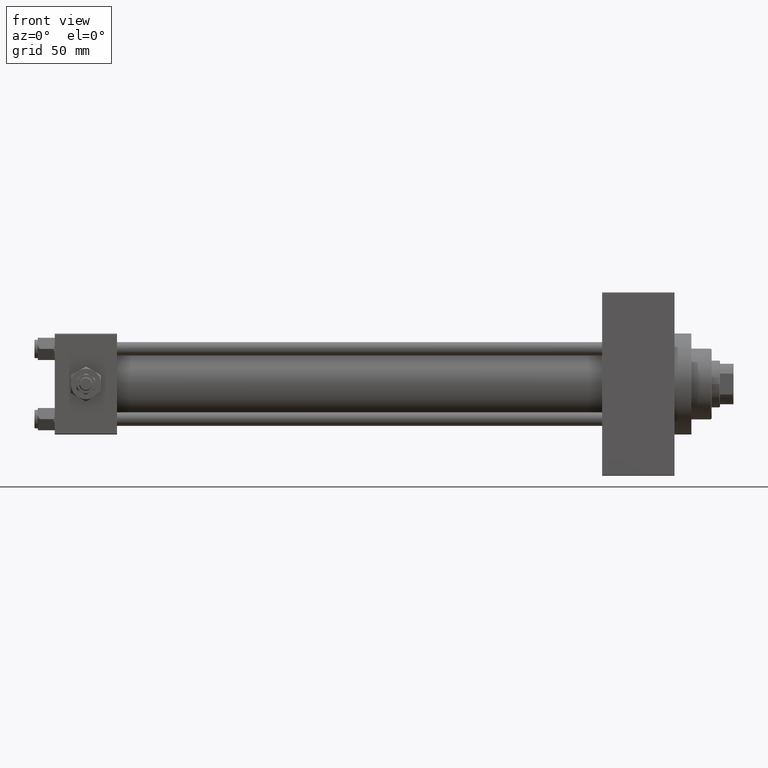
[diagram: clean part render]
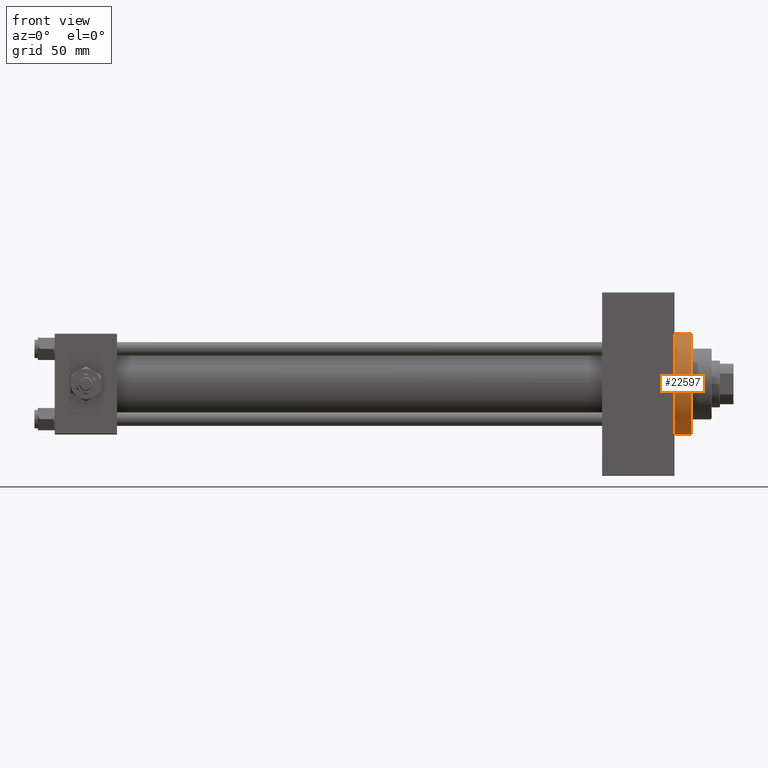
[diagram: same view with one face highlighted and labeled with its STEP entity id]
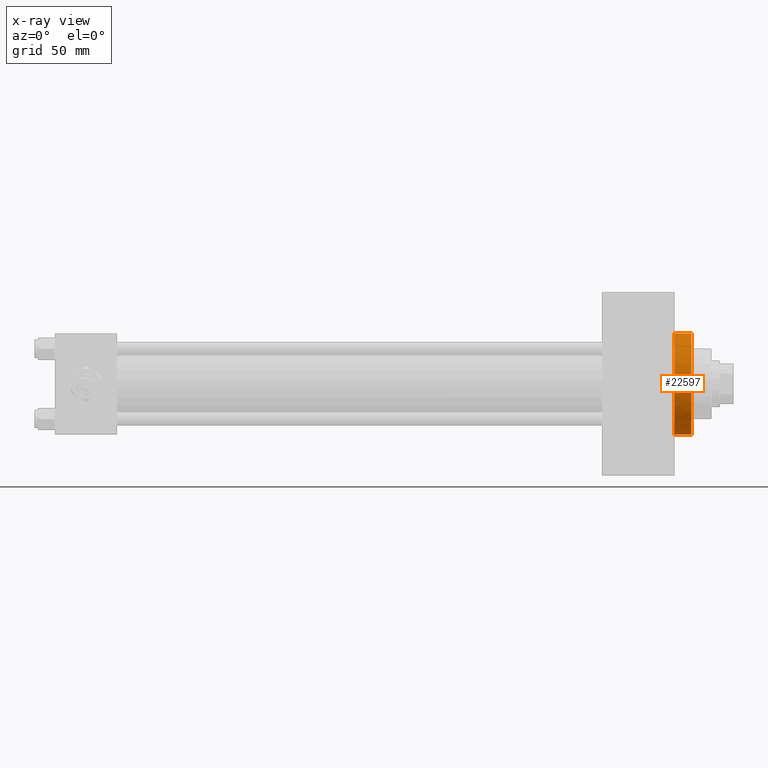
[diagram: x-ray of the same camera — body ghosted, the highlighted face saturated]
A machine part, front view. The second image highlights one B-rep face of the part: STEP entity #22597.
The next image is the same camera in x-ray: the body ghosted, the highlighted face saturated — about 0% of this face is hidden behind the body in this view.
In plain terms, the highlighted cylindrical surface (partial cylindrical patch) has radius 30 mm, axis along (-1, -0, -0).
Its self-contained STEP definition (entity closure, byte-faithful):
#25 = EDGE_CURVE ( 'NONE', #14640, #10781, #7497, .T. ) ;
#943 = EDGE_CURVE ( 'NONE', #36284, #18786, #34020, .T. ) ;
#1996 = VECTOR ( 'NONE', #26553, 1000.000000000000000 ) ;
#2735 = DIRECTION ( 'NONE',  ( 1.000000000000000000, 0.000000000000000000, 0.000000000000000000 ) ) ;
#2755 = CARTESIAN_POINT ( 'NONE',  ( 377.9999999999999432, 3.673940397442059178E-15, -30.00000000000000000 ) ) ;
#2896 = ORIENTED_EDGE ( 'NONE', *, *, #38691, .T. ) ;
#3329 = CIRCLE ( 'NONE', #9687, 30.00000000000000000 ) ;
#6558 = CARTESIAN_POINT ( 'NONE',  ( 367.9999999999999432, 0.000000000000000000, 30.00000000000000000 ) ) ;
#7497 = CIRCLE ( 'NONE', #37761, 30.00000000000000000 ) ;
#7712 = FACE_OUTER_BOUND ( 'NONE', #29360, .T. ) ;
#8177 = DIRECTION ( 'NONE',  ( 1.000000000000000000, 0.000000000000000000, 0.000000000000000000 ) ) ;
#9687 = AXIS2_PLACEMENT_3D ( 'NONE', #38076, #8177, #35094 ) ;
#10275 = VECTOR ( 'NONE', #29443, 1000.000000000000000 ) ;
#10781 = VERTEX_POINT ( 'NONE', #33995 ) ;
#10987 = CARTESIAN_POINT ( 'NONE',  ( 377.9999999999999432, 0.000000000000000000, 30.00000000000000000 ) ) ;
#13272 = LINE ( 'NONE', #40884, #10275 ) ;
#14640 = VERTEX_POINT ( 'NONE', #6558 ) ;
#17449 = EDGE_CURVE ( 'NONE', #44653, #14640, #13272, .T. ) ;
#17616 = AXIS2_PLACEMENT_3D ( 'NONE', #21672, #2735, #26147 ) ;
#18444 = ORIENTED_EDGE ( 'NONE', *, *, #25, .T. ) ;
#18786 = VERTEX_POINT ( 'NONE', #32889 ) ;
#18930 = CARTESIAN_POINT ( 'NONE',  ( 377.9999999999999432, 0.000000000000000000, 0.000000000000000000 ) ) ;
#19071 = CARTESIAN_POINT ( 'NONE',  ( 367.9999999999999432, 0.000000000000000000, 0.000000000000000000 ) ) ;
#21672 = CARTESIAN_POINT ( 'NONE',  ( 367.9999999999999432, 0.000000000000000000, 0.000000000000000000 ) ) ;
#22597 = ADVANCED_FACE ( 'NONE', ( #7712 ), #42091, .T. ) ;
#24113 = ORIENTED_EDGE ( 'NONE', *, *, #17449, .T. ) ;
#24821 = CIRCLE ( 'NONE', #17616, 30.00000000000000000 ) ;
#26147 = DIRECTION ( 'NONE',  ( 0.000000000000000000, 0.000000000000000000, -1.000000000000000000 ) ) ;
#26553 = DIRECTION ( 'NONE',  ( -1.000000000000000000, -0.000000000000000000, -0.000000000000000000 ) ) ;
#29235 = ORIENTED_EDGE ( 'NONE', *, *, #38766, .F. ) ;
#29360 = EDGE_LOOP ( 'NONE', ( #44957, #29235, #24113, #18444, #2896 ) ) ;
#29443 = DIRECTION ( 'NONE',  ( -1.000000000000000000, -0.000000000000000000, -0.000000000000000000 ) ) ;
#32889 = CARTESIAN_POINT ( 'NONE',  ( 367.9999999999999432, 3.673940397442059178E-15, -30.00000000000000000 ) ) ;
#33995 = CARTESIAN_POINT ( 'NONE',  ( 367.9999999999999432, -30.00000000000000000, 0.000000000000000000 ) ) ;
#34020 = LINE ( 'NONE', #37269, #1996 ) ;
#35094 = DIRECTION ( 'NONE',  ( 0.000000000000000000, 0.000000000000000000, -1.000000000000000000 ) ) ;
#36284 = VERTEX_POINT ( 'NONE', #2755 ) ;
#36299 = AXIS2_PLACEMENT_3D ( 'NONE', #18930, #45333, #41352 ) ;
#37269 = CARTESIAN_POINT ( 'NONE',  ( 377.9999999999999432, 3.673940397442059178E-15, -30.00000000000000000 ) ) ;
#37761 = AXIS2_PLACEMENT_3D ( 'NONE', #19071, #45959, #41979 ) ;
#38076 = CARTESIAN_POINT ( 'NONE',  ( 377.9999999999999432, 0.000000000000000000, 0.000000000000000000 ) ) ;
#38691 = EDGE_CURVE ( 'NONE', #10781, #18786, #24821, .T. ) ;
#38766 = EDGE_CURVE ( 'NONE', #44653, #36284, #3329, .T. ) ;
#40884 = CARTESIAN_POINT ( 'NONE',  ( 377.9999999999999432, 0.000000000000000000, 30.00000000000000000 ) ) ;
#41352 = DIRECTION ( 'NONE',  ( 0.000000000000000000, 0.000000000000000000, 1.000000000000000000 ) ) ;
#41979 = DIRECTION ( 'NONE',  ( 0.000000000000000000, 0.000000000000000000, -1.000000000000000000 ) ) ;
#42091 = CYLINDRICAL_SURFACE ( 'NONE', #36299, 30.00000000000000000 ) ;
#44653 = VERTEX_POINT ( 'NONE', #10987 ) ;
#44957 = ORIENTED_EDGE ( 'NONE', *, *, #943, .F. ) ;
#45333 = DIRECTION ( 'NONE',  ( -1.000000000000000000, -0.000000000000000000, -0.000000000000000000 ) ) ;
#45959 = DIRECTION ( 'NONE',  ( 1.000000000000000000, 0.000000000000000000, 0.000000000000000000 ) ) ;